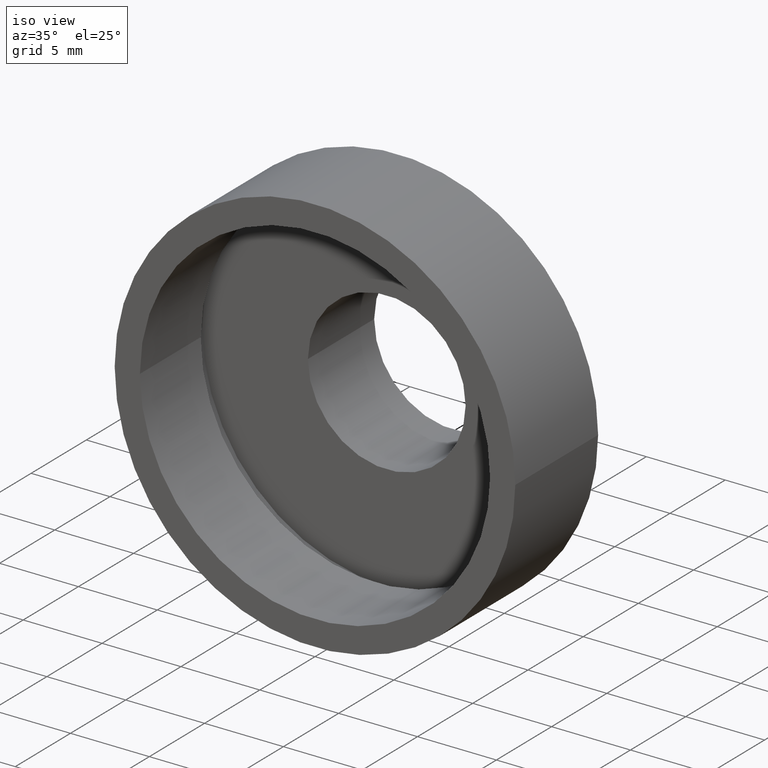
[diagram: clean part render]
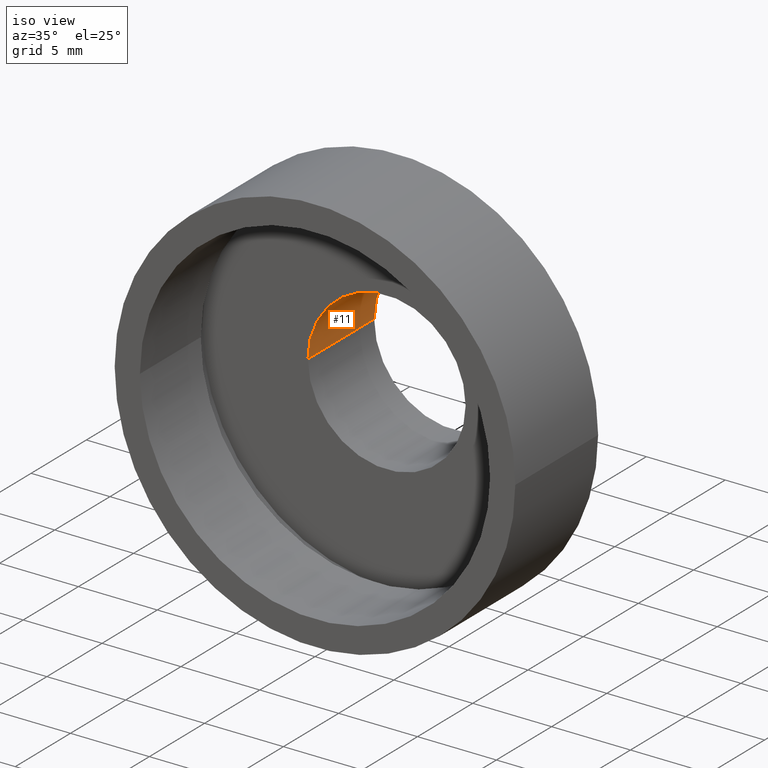
[diagram: same view with one face highlighted and labeled with its STEP entity id]
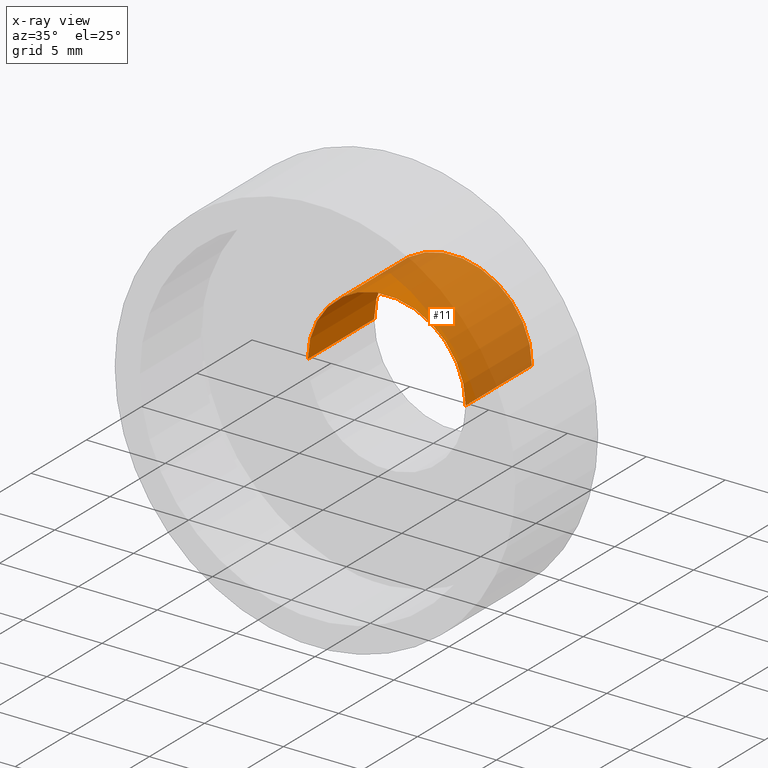
[diagram: x-ray of the same camera — body ghosted, the highlighted face saturated]
A machine part, iso view. The second image highlights one B-rep face of the part: STEP entity #11.
The next image is the same camera in x-ray: the body ghosted, the highlighted face saturated — about 73% of this face is hidden behind the body in this view.
In plain terms, the highlighted cylindrical surface (partial cylindrical patch) has radius 5 mm, axis along (-0, 1, -0).
Its self-contained STEP definition (entity closure, byte-faithful):
#11 = ADVANCED_FACE ( 'NONE', ( #411 ), #602, .F. ) ;
#43 = CARTESIAN_POINT ( 'NONE',  ( 5.000000000000000900, 16.88601823708207700, 6.123233995736767300E-016 ) ) ;
#51 = CARTESIAN_POINT ( 'NONE',  ( 5.000000000000001800, 6.500000000000000000, 6.123233995736767300E-016 ) ) ;
#56 = CARTESIAN_POINT ( 'NONE',  ( -5.000000000000000000, 12.50000000000000000, 0.0000000000000000000 ) ) ;
#79 = ORIENTED_EDGE ( 'NONE', *, *, #612, .T. ) ;
#90 = DIRECTION ( 'NONE',  ( -1.224646799147351000E-016, 1.000000000000000000, -0.0000000000000000000 ) ) ;
#92 = DIRECTION ( 'NONE',  ( -1.224646799147351000E-016, 1.000000000000000000, -0.0000000000000000000 ) ) ;
#112 = CARTESIAN_POINT ( 'NONE',  ( 5.371323195044471300E-016, 12.50000000000000000, 0.0000000000000000000 ) ) ;
#147 = DIRECTION ( 'NONE',  ( -1.224646799147351000E-016, 1.000000000000000000, -0.0000000000000000000 ) ) ;
#154 = CARTESIAN_POINT ( 'NONE',  ( -5.000000000000000900, 16.88601823708207700, 0.0000000000000000000 ) ) ;
#165 = DIRECTION ( 'NONE',  ( -1.224646799147351000E-016, 1.000000000000000000, -0.0000000000000000000 ) ) ;
#168 = ORIENTED_EDGE ( 'NONE', *, *, #599, .T. ) ;
#185 = VERTEX_POINT ( 'NONE', #51 ) ;
#186 = VERTEX_POINT ( 'NONE', #56 ) ;
#200 = VERTEX_POINT ( 'NONE', #486 ) ;
#244 = AXIS2_PLACEMENT_3D ( 'NONE', #112, #147, #277 ) ;
#258 = EDGE_CURVE ( 'NONE', #444, #185, #430, .T. ) ;
#277 = DIRECTION ( 'NONE',  ( -1.000000000000000000, 0.0000000000000000000, 0.0000000000000000000 ) ) ;
#278 = EDGE_CURVE ( 'NONE', #185, #200, #597, .T. ) ;
#325 = DIRECTION ( 'NONE',  ( -1.224646799147351000E-016, 1.000000000000000000, -0.0000000000000000000 ) ) ;
#336 = DIRECTION ( 'NONE',  ( -1.000000000000000000, 0.0000000000000000000, 0.0000000000000000000 ) ) ;
#366 = AXIS2_PLACEMENT_3D ( 'NONE', #619, #165, #488 ) ;
#392 = EDGE_LOOP ( 'NONE', ( #455, #426, #168, #79 ) ) ;
#411 = FACE_OUTER_BOUND ( 'NONE', #392, .T. ) ;
#426 = ORIENTED_EDGE ( 'NONE', *, *, #258, .F. ) ;
#430 = CIRCLE ( 'NONE', #366, 5.000000000000000900 ) ;
#444 = VERTEX_POINT ( 'NONE', #556 ) ;
#447 = LINE ( 'NONE', #154, #581 ) ;
#455 = ORIENTED_EDGE ( 'NONE', *, *, #278, .F. ) ;
#486 = CARTESIAN_POINT ( 'NONE',  ( 5.000000000000001800, 12.50000000000000000, 6.123233995736767300E-016 ) ) ;
#488 = DIRECTION ( 'NONE',  ( -1.000000000000000000, -1.734723475976806800E-016, 0.0000000000000000000 ) ) ;
#489 = CARTESIAN_POINT ( 'NONE',  ( 0.0000000000000000000, 16.88601823708207700, 0.0000000000000000000 ) ) ;
#522 = AXIS2_PLACEMENT_3D ( 'NONE', #489, #90, #336 ) ;
#547 = VECTOR ( 'NONE', #92, 1000.000000000000000 ) ;
#556 = CARTESIAN_POINT ( 'NONE',  ( -5.000000000000000000, 6.499999999999998200, 0.0000000000000000000 ) ) ;
#581 = VECTOR ( 'NONE', #325, 1000.000000000000000 ) ;
#589 = CIRCLE ( 'NONE', #244, 5.000000000000000900 ) ;
#597 = LINE ( 'NONE', #43, #547 ) ;
#599 = EDGE_CURVE ( 'NONE', #444, #186, #447, .T. ) ;
#602 = CYLINDRICAL_SURFACE ( 'NONE', #522, 5.000000000000000900 ) ;
#612 = EDGE_CURVE ( 'NONE', #186, #200, #589, .T. ) ;
#619 = CARTESIAN_POINT ( 'NONE',  ( 1.271920398992857800E-015, 6.499999999999999100, 0.0000000000000000000 ) ) ;